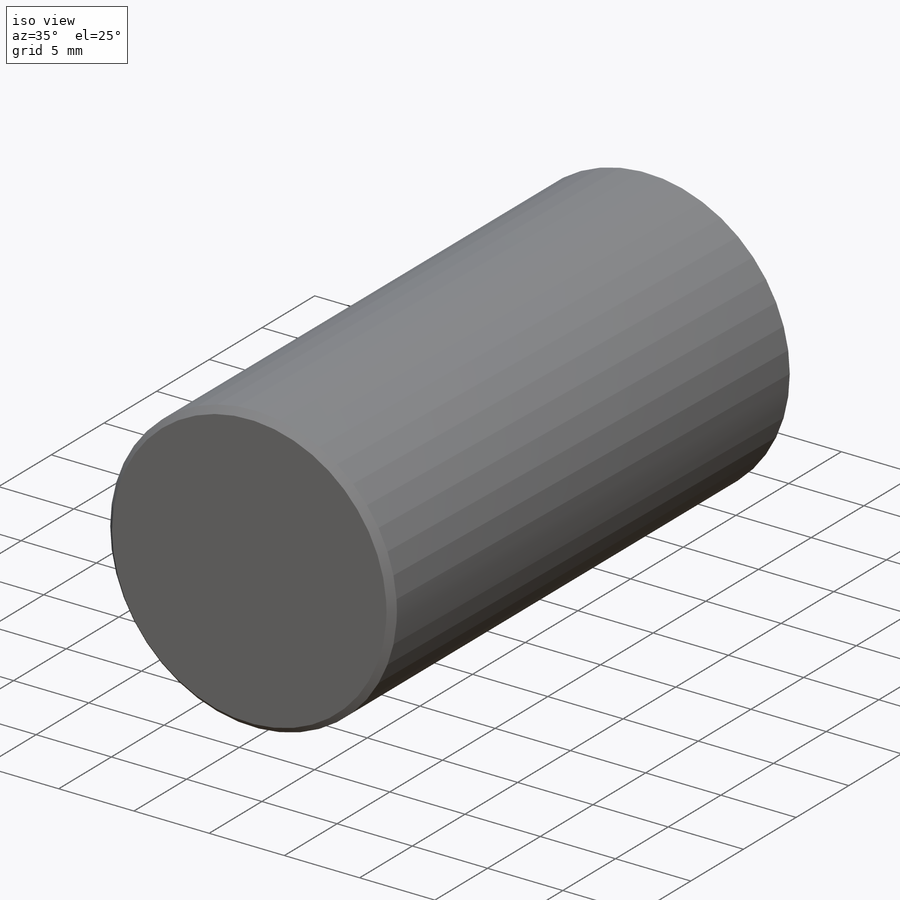
[diagram: iso view]
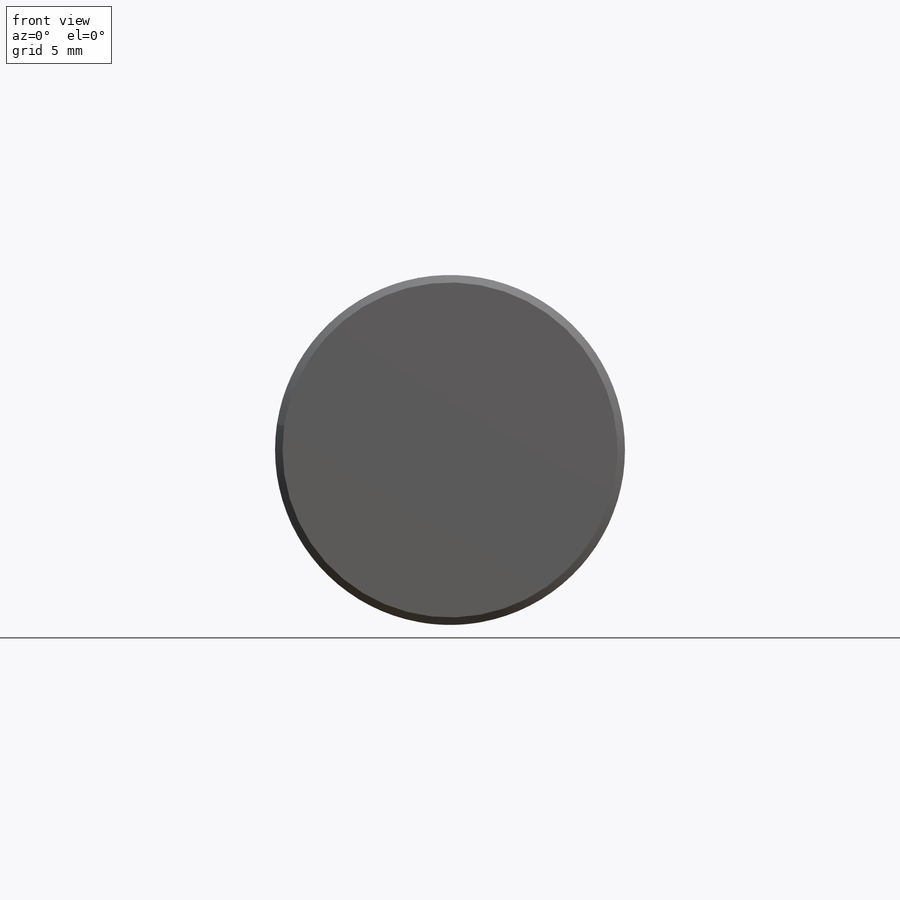
[diagram: front view]
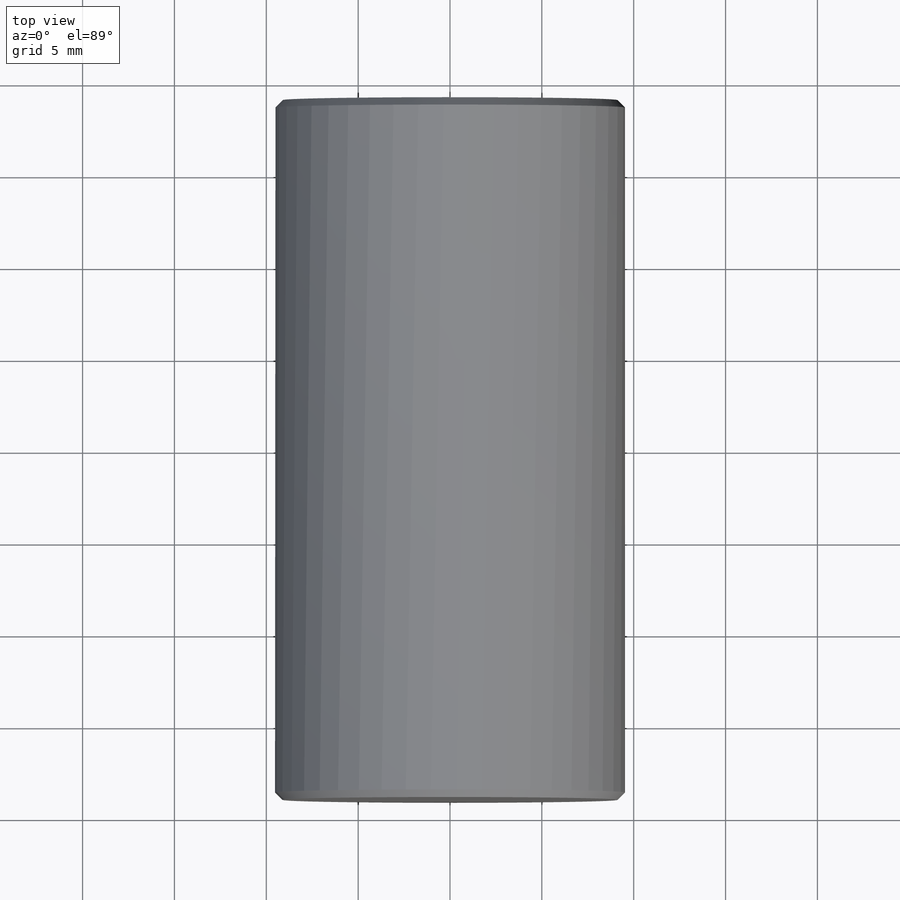
[diagram: top view]
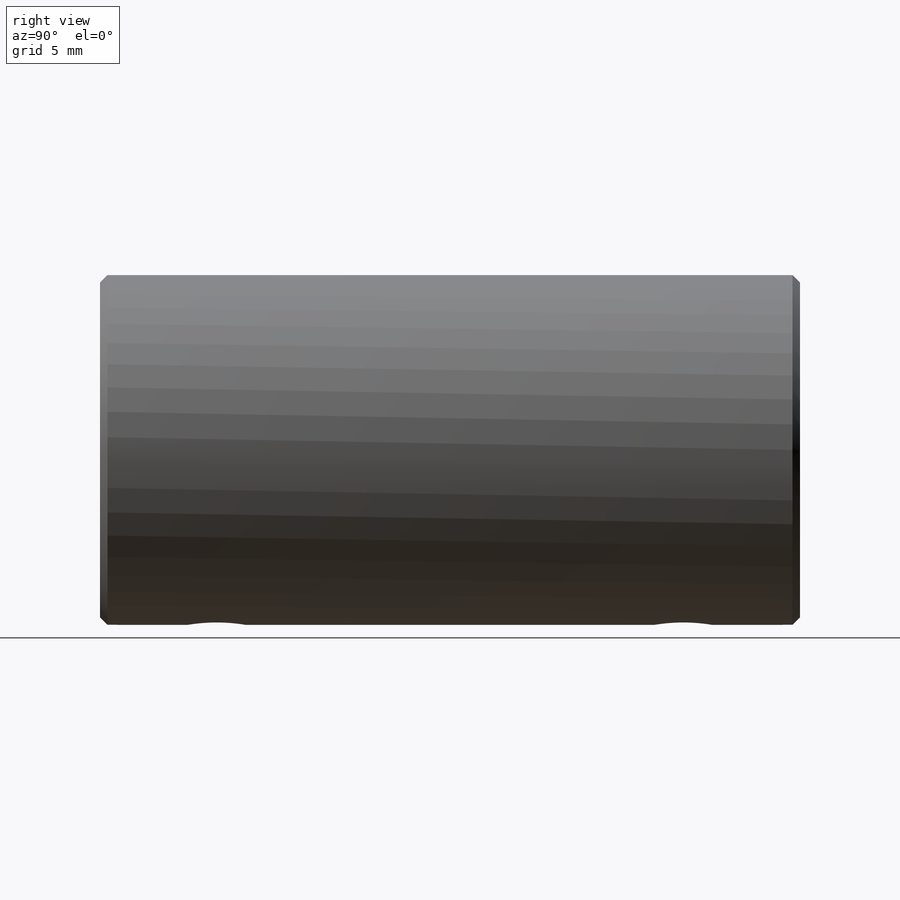
[diagram: right view]
SOLIDWORKS PART (.sldprt)
format: sldprt  version: not decoded by parser v0  size: 353,792 bytes
history: native  units: mm
features: plane x4, sketch x3, cut_extrude x2, material x1, extrude x1, chamfer x1 + 3 further entries (+10 scaffold rows collapsed)
feature tree (25):
  scaffold x10  (default folders/planes/origin — collapsed)
  material  "Stainless Steel 440C 58Rc"
  plane  "Plane X-Y"
  plane  "Plane X-Z"
  plane  "Plane Y-Z"
  "Design Table"
  "Axis - Y"
  "Axis - Z"
  sketch  "Sketch1"  dims[Cylinder_dia=12.7mm]
  extrude  "Extrude1"  Depth=38.1mm
  chamfer  "Chamfer1"  Distance=0.4064mm Angle=45deg
  plane  "Bottom Plane"
  sketch  "Sketch6"  dims[Hole_dia=~3.96875mm D2=25.4mm]
  cut_extrude  "Blind Holes"  Depth=6.35mm Hole_depth=6.35mm
  sketch  "Sketch7"  dims[D1=0.3048mm D2=~1.825342mm]
  cut_extrude  "Cut-Extrude1"  Depth=0.127mm
decode coverage: 7 of 7 modeling features carry decoded parameters; 3 rows unclassified (native names shown)
note: ~ marks probable driven/reference dimensions
note: suppression state not decoded; provenance and decode notes live in map.json
